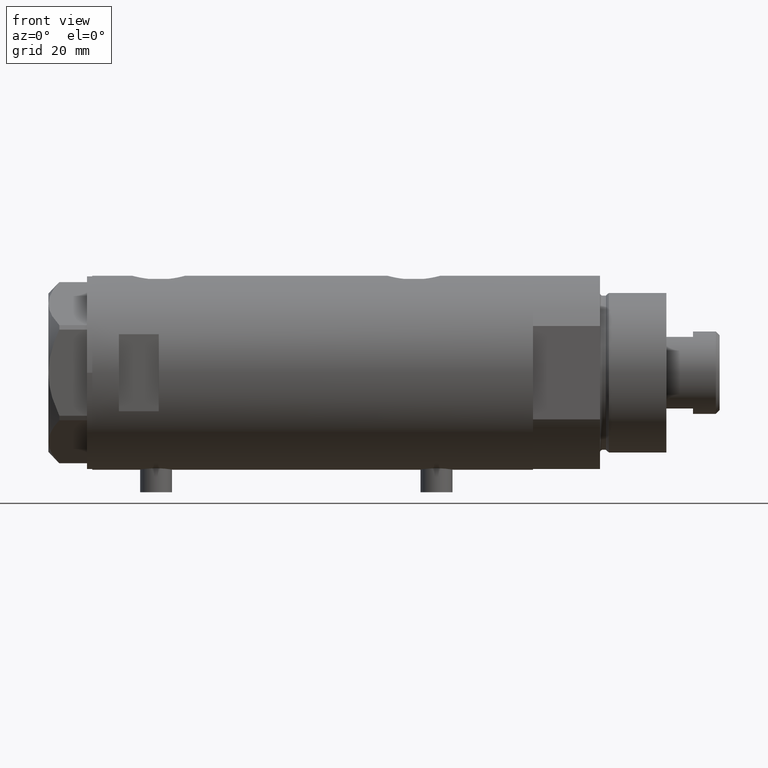
[diagram: clean part render]
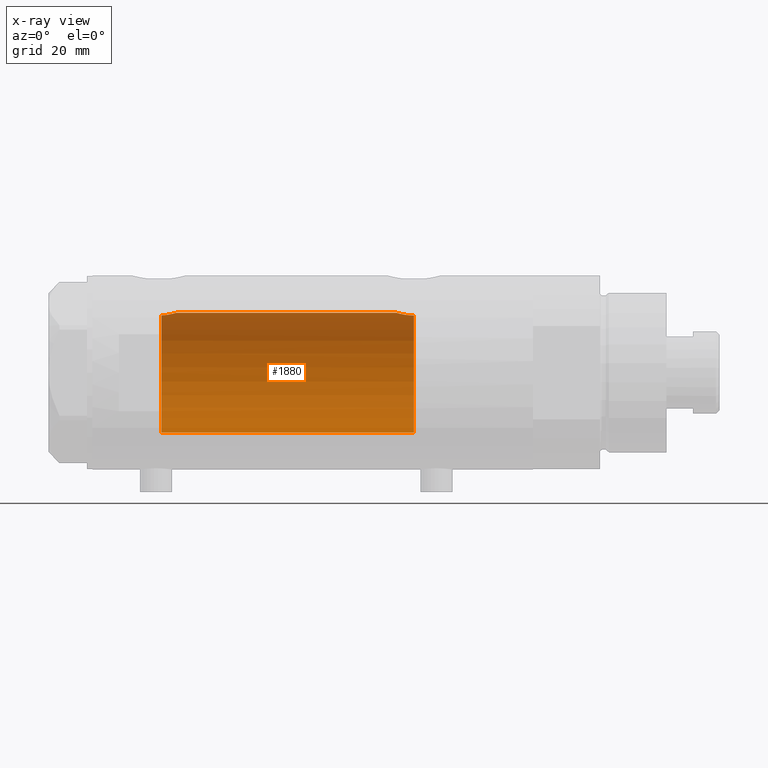
[diagram: x-ray — body ghosted, one internal face saturated and labeled with its STEP entity id]
A machine part, front view, then the same camera in x-ray: the body is ghosted and one INTERNAL B-rep face — a face not visible from any outside direction — is saturated and labeled: STEP entity #1880.
In plain terms, the highlighted cylindrical surface (partial cylindrical patch) has radius 22.5 mm, axis along (1, 0, -0).
Its self-contained STEP definition (entity closure, byte-faithful):
#18 = CARTESIAN_POINT ( 'NONE',  ( 21.53958216864942088, 6.503568251352486840, 56.90000000000000568 ) ) ;
#126 = CARTESIAN_POINT ( 'NONE',  ( 21.58771824211648038, 6.342145538420561834, 56.13591924784430631 ) ) ;
#151 = CARTESIAN_POINT ( 'NONE',  ( 22.50000000000000355, 0.000000000000000000, 51.32000000000000028 ) ) ;
#163 = CYLINDRICAL_SURFACE ( 'NONE', #3722, 22.50000000000000355 ) ;
#245 = CARTESIAN_POINT ( 'NONE',  ( 21.54248662244912893, 6.494090541481658541, -37.01861175082140676 ) ) ;
#258 = DIRECTION ( 'NONE',  ( 0.000000000000000000, 0.000000000000000000, 1.000000000000000000 ) ) ;
#269 = VERTEX_POINT ( 'NONE', #151 ) ;
#272 = CARTESIAN_POINT ( 'NONE',  ( 22.31307373663816662, 2.921646833104065255, -32.18858613169776817 ) ) ;
#341 = CARTESIAN_POINT ( 'NONE',  ( 21.58039466125149630, 6.367443256290042264, -36.38625661091905528 ) ) ;
#430 = EDGE_CURVE ( 'NONE', #3023, #2615, #1184, .T. ) ;
#459 = CARTESIAN_POINT ( 'NONE',  ( 21.70300828301578733, 5.938634204148080187, 55.04008341356918521 ) ) ;
#634 = CARTESIAN_POINT ( 'NONE',  ( 22.43846943857365872, 1.717024460055897039, -31.73305400432138867 ) ) ;
#656 = CARTESIAN_POINT ( 'NONE',  ( 21.53277870401796434, 6.526097350343573744, -37.23193080670432664 ) ) ;
#789 = CARTESIAN_POINT ( 'NONE',  ( 21.80257506594836059, 5.561983929949493088, 54.36293428743496747 ) ) ;
#827 = CARTESIAN_POINT ( 'NONE',  ( 21.55996057785741726, 6.435875139617805551, 56.51641692772588499 ) ) ;
#839 = LINE ( 'NONE', #1488, #1333 ) ;
#840 = AXIS2_PLACEMENT_3D ( 'NONE', #3954, #1820, #2939 ) ;
#845 = CARTESIAN_POINT ( 'NONE',  ( 22.50000000000000355, 8.058593785575293352E-16, -31.51999999999999957 ) ) ;
#853 = CARTESIAN_POINT ( 'NONE',  ( 22.20005338163447206, 3.677069589895788582, 52.42964083487822791 ) ) ;
#1004 = VECTOR ( 'NONE', #2709, 1000.000000000000000 ) ;
#1040 = CARTESIAN_POINT ( 'NONE',  ( 22.25860915731085754, 3.306748059303223464, -32.39512753277105617 ) ) ;
#1050 = CARTESIAN_POINT ( 'NONE',  ( 22.50000000000000355, 8.058593785575293352E-16, -31.51999999999999957 ) ) ;
#1146 = CARTESIAN_POINT ( 'NONE',  ( 22.40112435233285026, 2.115025885874699973, 51.66613662186026090 ) ) ;
#1164 = CARTESIAN_POINT ( 'NONE',  ( 22.03020271031499888, 4.583618747547679284, 53.16326305060303525 ) ) ;
#1180 = CARTESIAN_POINT ( 'NONE',  ( -22.50000000000000355, 0.000000000000000000, 56.90000000000000568 ) ) ;
#1184 = CIRCLE ( 'NONE', #3708, 22.50000000000000355 ) ;
#1243 = B_SPLINE_CURVE_WITH_KNOTS ( 'NONE', 3,
 ( #845, #3058, #3704, #634, #4094, #272, #1040, #3735, #3441, #1650, #2662, #2013, #2739, #2372, #1376, #3341, #341, #245, #656, #3013, #4119, #1623 ),
 .UNSPECIFIED., .F., .F.,
 ( 4, 2, 2, 2, 2, 2, 2, 2, 2, 2, 4 ),
 ( 0.02068572879290663316, 0.02197833177876012262, 0.02327093476461361554, 0.02456353775046710500, 0.02585614073632059445, 0.02650244222924734785, 0.02714874372217410126, 0.02844134670802762888, 0.02973394969388114956, 0.03038025118680791337, 0.03102655267973467718 ),
 .UNSPECIFIED. ) ;
#1333 = VECTOR ( 'NONE', #3616, 1000.000000000000000 ) ;
#1352 = ORIENTED_EDGE ( 'NONE', *, *, #4212, .F. ) ;
#1361 = EDGE_CURVE ( 'NONE', #3786, #4156, #2931, .T. ) ;
#1376 = CARTESIAN_POINT ( 'NONE',  ( 21.71097692913352617, 5.908765693315405798, -35.17224774632267525 ) ) ;
#1426 = ORIENTED_EDGE ( 'NONE', *, *, #430, .T. ) ;
#1475 = CARTESIAN_POINT ( 'NONE',  ( 21.97198143592078878, 4.852313884858198811, 53.43898489903312310 ) ) ;
#1476 = EDGE_CURVE ( 'NONE', #2615, #3786, #839, .T. ) ;
#1488 = CARTESIAN_POINT ( 'NONE',  ( -22.50000000000000355, 0.000000000000000000, 82.90000000000000568 ) ) ;
#1514 = ORIENTED_EDGE ( 'NONE', *, *, #1476, .T. ) ;
#1523 = FACE_OUTER_BOUND ( 'NONE', #4142, .T. ) ;
#1535 = CARTESIAN_POINT ( 'NONE',  ( 22.34487948028763071, 2.662928462767973237, 51.87031008565885060 ) ) ;
#1541 = CARTESIAN_POINT ( 'NONE',  ( 0.000000000000000000, 0.000000000000000000, 82.90000000000000568 ) ) ;
#1623 = CARTESIAN_POINT ( 'NONE',  ( 21.51635656889892800, 6.580000000000002736, -38.10000000000000142 ) ) ;
#1650 = CARTESIAN_POINT ( 'NONE',  ( 21.98170506496023435, 4.804030677015544981, -33.59847163284562299 ) ) ;
#1656 = ORIENTED_EDGE ( 'NONE', *, *, #2188, .F. ) ;
#1718 = LINE ( 'NONE', #4137, #1004 ) ;
#1815 = CARTESIAN_POINT ( 'NONE',  ( -22.50000000000000355, 0.000000000000000000, -38.09999999999999432 ) ) ;
#1820 = DIRECTION ( 'NONE',  ( 0.000000000000000000, 0.000000000000000000, -1.000000000000000000 ) ) ;
#1832 = CARTESIAN_POINT ( 'NONE',  ( 21.54850992350584349, 6.473999851071386757, 56.70769989068857342 ) ) ;
#1860 = CARTESIAN_POINT ( 'NONE',  ( 22.45973433770731020, 1.359115216171840279, 51.45894713662338660 ) ) ;
#1880 = ADVANCED_FACE ( 'NONE', ( #1523 ), #163, .F. ) ;
#1969 = CARTESIAN_POINT ( 'NONE',  ( 0.000000000000000000, 0.000000000000000000, 56.90000000000000568 ) ) ;
#2013 = CARTESIAN_POINT ( 'NONE',  ( 21.88602906110443058, 5.222191658358659616, -34.09110908501991588 ) ) ;
#2038 = VERTEX_POINT ( 'NONE', #1050 ) ;
#2154 = CARTESIAN_POINT ( 'NONE',  ( 22.41810768969941847, 1.927264596308556399, 51.60552498238021002 ) ) ;
#2174 = CARTESIAN_POINT ( 'NONE',  ( 22.44738562510071489, 1.549445000368393277, 51.50203276325539292 ) ) ;
#2188 = EDGE_CURVE ( 'NONE', #3023, #269, #4063, .T. ) ;
#2286 = ORIENTED_EDGE ( 'NONE', *, *, #1361, .T. ) ;
#2333 = DIRECTION ( 'NONE',  ( 1.000000000000000000, 0.000000000000000000, 0.000000000000000000 ) ) ;
#2372 = CARTESIAN_POINT ( 'NONE',  ( 21.76592257976932032, 5.705656113855375189, -34.79484284637812408 ) ) ;
#2516 = CARTESIAN_POINT ( 'NONE',  ( 22.48961798642638499, 0.7839168256130851775, 51.35525408827136573 ) ) ;
#2535 = CARTESIAN_POINT ( 'NONE',  ( 22.50000000000000355, 0.000000000000000000, 51.32000000000000028 ) ) ;
#2615 = VERTEX_POINT ( 'NONE', #1180 ) ;
#2643 = CARTESIAN_POINT ( 'NONE',  ( 21.51635656889892800, 6.580000000000002736, -38.10000000000000142 ) ) ;
#2662 = CARTESIAN_POINT ( 'NONE',  ( 21.94924653817634663, 4.949760619110008975, -33.75922104935666113 ) ) ;
#2674 = DIRECTION ( 'NONE',  ( -1.000000000000000000, 0.000000000000000000, 0.000000000000000000 ) ) ;
#2709 = DIRECTION ( 'NONE',  ( -0.000000000000000000, -0.000000000000000000, -1.000000000000000000 ) ) ;
#2739 = CARTESIAN_POINT ( 'NONE',  ( 21.85514244747245272, 5.349553529053609147, -34.26278474480277225 ) ) ;
#2888 = CARTESIAN_POINT ( 'NONE',  ( 21.53958216864942088, 6.503568251352486840, 56.90000000000000568 ) ) ;
#2931 = CIRCLE ( 'NONE', #840, 22.50000000000000355 ) ;
#2939 = DIRECTION ( 'NONE',  ( -1.000000000000000000, 0.000000000000000000, 0.000000000000000000 ) ) ;
#3013 = CARTESIAN_POINT ( 'NONE',  ( 21.51969523957628283, 6.569111213712935715, -37.66380209493692632 ) ) ;
#3023 = VERTEX_POINT ( 'NONE', #18 ) ;
#3058 = CARTESIAN_POINT ( 'NONE',  ( 22.50000000000000711, 0.4308769323960432440, -31.52000000000001378 ) ) ;
#3130 = ORIENTED_EDGE ( 'NONE', *, *, #4259, .F. ) ;
#3224 = CARTESIAN_POINT ( 'NONE',  ( 22.14421896774458887, 3.996618394220599946, 52.65850411031065192 ) ) ;
#3341 = CARTESIAN_POINT ( 'NONE',  ( 21.61738790272778843, 6.242481197317898634, -35.97475324290417831 ) ) ;
#3441 = CARTESIAN_POINT ( 'NONE',  ( 22.07793805162484446, 4.348669293362732446, -33.14321183416397076 ) ) ;
#3560 = CARTESIAN_POINT ( 'NONE',  ( 21.85834467356397681, 5.340944334976049923, 54.03736885285049851 ) ) ;
#3616 = DIRECTION ( 'NONE',  ( -0.000000000000000000, -0.000000000000000000, -1.000000000000000000 ) ) ;
#3672 = DIRECTION ( 'NONE',  ( -0.000000000000000000, -0.000000000000000000, -1.000000000000000000 ) ) ;
#3704 = CARTESIAN_POINT ( 'NONE',  ( 22.48752745446833501, 0.8626660575027224054, -31.56226479722901956 ) ) ;
#3708 = AXIS2_PLACEMENT_3D ( 'NONE', #1969, #258, #2333 ) ;
#3722 = AXIS2_PLACEMENT_3D ( 'NONE', #1541, #3672, #2674 ) ;
#3735 = CARTESIAN_POINT ( 'NONE',  ( 22.14109776314135658, 4.018961829707383693, -32.87237162697964266 ) ) ;
#3786 = VERTEX_POINT ( 'NONE', #1815 ) ;
#3881 = CARTESIAN_POINT ( 'NONE',  ( 22.50000000000000355, 0.3947970979781463829, 51.31999999999999318 ) ) ;
#3954 = CARTESIAN_POINT ( 'NONE',  ( 0.000000000000000000, 0.000000000000000000, -38.09999999999999432 ) ) ;
#4063 = B_SPLINE_CURVE_WITH_KNOTS ( 'NONE', 3,
 ( #2888, #1832, #827, #126, #4246, #4309, #459, #789, #3560, #1475, #1164, #3224, #853, #4221, #1535, #1146, #2154, #2174, #1860, #2516, #3881, #2535 ),
 .UNSPECIFIED., .F., .F.,
 ( 4, 2, 2, 2, 2, 2, 2, 2, 2, 2, 4 ),
 ( 0.03202894702871426219, 0.03261250414633486139, 0.03319606126395546059, 0.03436317549919667980, 0.03553028973443790595, 0.03669740396967912516, 0.03786451820492034437, 0.03903163244016157052, 0.03961518955778217665, 0.04019874667540278973, 0.04136586091064400894 ),
 .UNSPECIFIED. ) ;
#4094 = CARTESIAN_POINT ( 'NONE',  ( 22.40265168709897736, 2.128491761919761416, -31.85897789146818582 ) ) ;
#4119 = CARTESIAN_POINT ( 'NONE',  ( 21.51635656889893156, 6.580000000000002736, -37.88312317022887754 ) ) ;
#4137 = CARTESIAN_POINT ( 'NONE',  ( 22.50000000000000355, 2.755455298081545172E-15, 82.90000000000000568 ) ) ;
#4142 = EDGE_LOOP ( 'NONE', ( #3130, #1656, #1426, #1514, #2286, #1352 ) ) ;
#4156 = VERTEX_POINT ( 'NONE', #2643 ) ;
#4212 = EDGE_CURVE ( 'NONE', #2038, #4156, #1243, .T. ) ;
#4221 = CARTESIAN_POINT ( 'NONE',  ( 22.30007684883240060, 3.011608117356138425, 52.03690468166832517 ) ) ;
#4246 = CARTESIAN_POINT ( 'NONE',  ( 21.60406082673097927, 6.286405977953741342, 55.94666670735803393 ) ) ;
#4259 = EDGE_CURVE ( 'NONE', #269, #2038, #1718, .T. ) ;
#4309 = CARTESIAN_POINT ( 'NONE',  ( 21.65875036540690601, 6.096384986856001831, 55.39350157007414310 ) ) ;